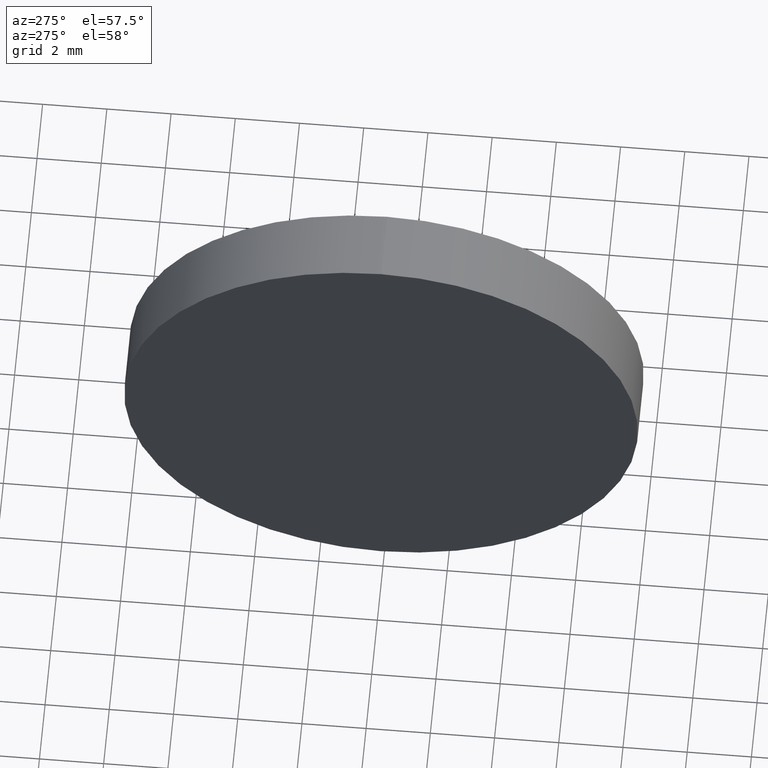
[diagram: clean part render]
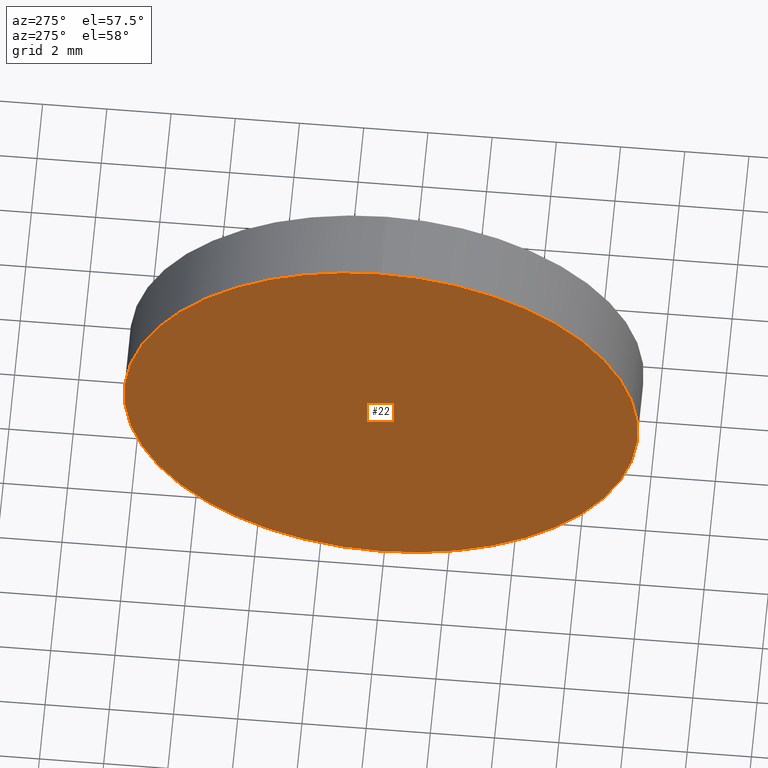
[diagram: same view with one face highlighted and labeled with its STEP entity id]
A machine part, auxiliary view. The second image highlights one B-rep face of the part: STEP entity #22.
In plain terms, the highlighted planar face has unit normal (1, 0, 0).
Its self-contained STEP definition (entity closure, byte-faithful):
#3 = AXIS2_PLACEMENT_3D ( 'NONE', #114, #64, #141 ) ;
#6 = CARTESIAN_POINT ( 'NONE',  ( 44.31915269315436500, 26.08904114919495900, 8.000000000000003600 ) ) ;
#8 = VERTEX_POINT ( 'NONE', #6 ) ;
#10 = AXIS2_PLACEMENT_3D ( 'NONE', #51, #75, #142 ) ;
#20 = ORIENTED_EDGE ( 'NONE', *, *, #47, .T. ) ;
#22 = ADVANCED_FACE ( 'NONE', ( #153 ), #44, .F. ) ;
#32 = EDGE_CURVE ( 'NONE', #100, #8, #84, .T. ) ;
#35 = CARTESIAN_POINT ( 'NONE',  ( 44.31915269315436500, 26.08904114919495900, 0.0000000000000000000 ) ) ;
#36 = DIRECTION ( 'NONE',  ( 1.000000000000000000, 0.0000000000000000000, 0.0000000000000000000 ) ) ;
#44 = PLANE ( 'NONE',  #151 ) ;
#47 = EDGE_CURVE ( 'NONE', #8, #100, #150, .T. ) ;
#51 = CARTESIAN_POINT ( 'NONE',  ( 44.31915269315436500, 26.08904114919495900, 0.0000000000000000000 ) ) ;
#64 = DIRECTION ( 'NONE',  ( -1.000000000000000000, -0.0000000000000000000, -0.0000000000000000000 ) ) ;
#65 = CARTESIAN_POINT ( 'NONE',  ( 44.31915269315436500, 26.08904114919495900, -8.000000000000003600 ) ) ;
#75 = DIRECTION ( 'NONE',  ( -1.000000000000000000, -0.0000000000000000000, -0.0000000000000000000 ) ) ;
#84 = CIRCLE ( 'NONE', #3, 8.000000000000003600 ) ;
#88 = DIRECTION ( 'NONE',  ( 0.0000000000000000000, 0.0000000000000000000, -1.000000000000000000 ) ) ;
#99 = ORIENTED_EDGE ( 'NONE', *, *, #32, .T. ) ;
#100 = VERTEX_POINT ( 'NONE', #65 ) ;
#114 = CARTESIAN_POINT ( 'NONE',  ( 44.31915269315436500, 26.08904114919495900, 0.0000000000000000000 ) ) ;
#119 = EDGE_LOOP ( 'NONE', ( #20, #99 ) ) ;
#141 = DIRECTION ( 'NONE',  ( 0.0000000000000000000, 0.0000000000000000000, 1.000000000000000000 ) ) ;
#142 = DIRECTION ( 'NONE',  ( 0.0000000000000000000, 0.0000000000000000000, 1.000000000000000000 ) ) ;
#150 = CIRCLE ( 'NONE', #10, 8.000000000000003600 ) ;
#151 = AXIS2_PLACEMENT_3D ( 'NONE', #35, #36, #88 ) ;
#153 = FACE_OUTER_BOUND ( 'NONE', #119, .T. ) ;